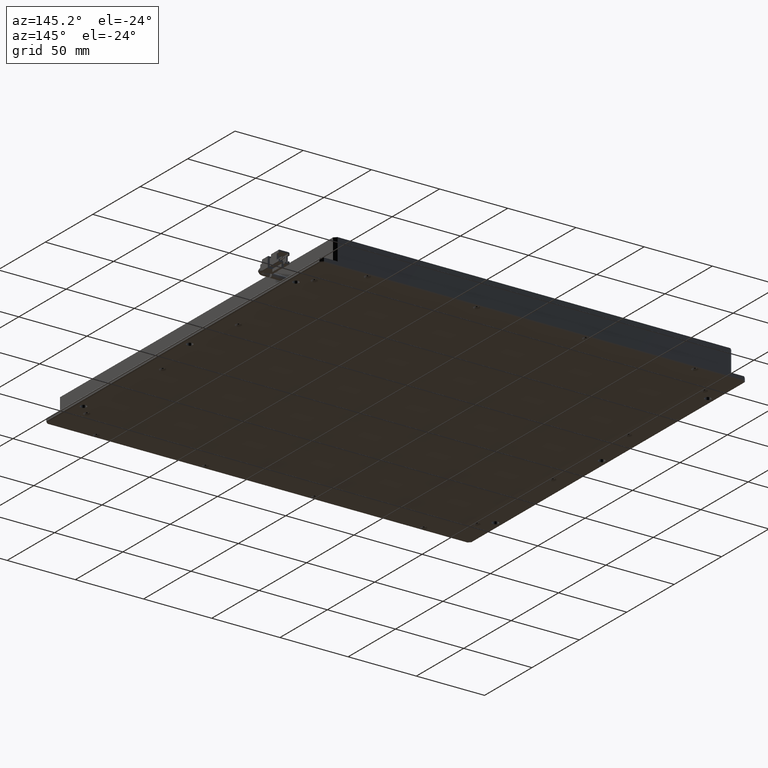
[diagram: clean part render]
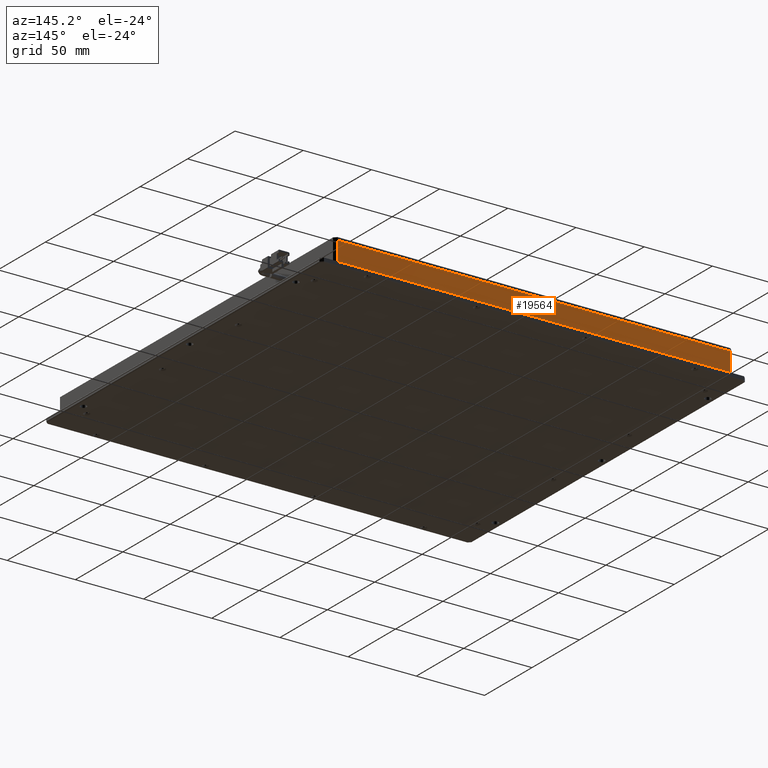
[diagram: same view with one face highlighted and labeled with its STEP entity id]
A machine part, auxiliary view. The second image highlights one B-rep face of the part: STEP entity #19564.
In plain terms, the highlighted planar face has unit normal (0, -1, 0).
Its self-contained STEP definition (entity closure, byte-faithful):
#1144 = DIRECTION ( 'NONE',  ( -1.000000000000000000, -0.0000000000000000000, 0.0000000000000000000 ) ) ;
#1535 = ORIENTED_EDGE ( 'NONE', *, *, #1573, .T. ) ;
#1573 = EDGE_CURVE ( 'NONE', #19891, #16066, #23715, .T. ) ;
#1976 = DIRECTION ( 'NONE',  ( 0.0000000000000000000, -1.000000000000000000, 0.0000000000000000000 ) ) ;
#2115 = CARTESIAN_POINT ( 'NONE',  ( -111.0806771263419000, 159.2698045692266900, 6.999999999971805700 ) ) ;
#3209 = EDGE_LOOP ( 'NONE', ( #19469, #13529, #1535, #20201 ) ) ;
#3385 = CARTESIAN_POINT ( 'NONE',  ( -113.0806771263418400, 159.2698045692266900, -7.000000000028194300 ) ) ;
#3428 = LINE ( 'NONE', #3385, #20123 ) ;
#4227 = VERTEX_POINT ( 'NONE', #18205 ) ;
#4544 = CARTESIAN_POINT ( 'NONE',  ( -111.0806771263418800, 159.2698045692266900, 6.999999999971805700 ) ) ;
#6206 = LINE ( 'NONE', #23191, #19439 ) ;
#7889 = VECTOR ( 'NONE', #17192, 1000.000000000000000 ) ;
#8707 = DIRECTION ( 'NONE',  ( 1.000000000000000000, 0.0000000000000000000, 0.0000000000000000000 ) ) ;
#8892 = CARTESIAN_POINT ( 'NONE',  ( -111.0806771263419000, 159.2698045692266900, -7.000000000028197000 ) ) ;
#9083 = DIRECTION ( 'NONE',  ( 0.0000000000000000000, -0.0000000000000000000, -1.000000000000000000 ) ) ;
#10825 = FACE_OUTER_BOUND ( 'NONE', #3209, .T. ) ;
#12144 = EDGE_CURVE ( 'NONE', #19891, #4227, #3428, .T. ) ;
#12507 = DIRECTION ( 'NONE',  ( -0.0000000000000000000, 0.0000000000000000000, 1.000000000000000000 ) ) ;
#13362 = VECTOR ( 'NONE', #12507, 1000.000000000000000 ) ;
#13529 = ORIENTED_EDGE ( 'NONE', *, *, #12144, .F. ) ;
#14757 = CARTESIAN_POINT ( 'NONE',  ( -113.0806771263418400, 159.2698045692266900, 6.999999999971805700 ) ) ;
#16066 = VERTEX_POINT ( 'NONE', #4544 ) ;
#17086 = CARTESIAN_POINT ( 'NONE',  ( 176.9193228736581300, 159.2698045692266400, 6.999999999971805700 ) ) ;
#17192 = DIRECTION ( 'NONE',  ( -0.0000000000000000000, 0.0000000000000000000, 1.000000000000000000 ) ) ;
#17370 = EDGE_CURVE ( 'NONE', #4227, #22362, #18228, .T. ) ;
#18205 = CARTESIAN_POINT ( 'NONE',  ( 176.9193228736581300, 159.2698045692266400, -7.000000000028196100 ) ) ;
#18228 = LINE ( 'NONE', #23511, #13362 ) ;
#19439 = VECTOR ( 'NONE', #1144, 1000.000000000000000 ) ;
#19469 = ORIENTED_EDGE ( 'NONE', *, *, #17370, .F. ) ;
#19479 = PLANE ( 'NONE',  #23254 ) ;
#19564 = ADVANCED_FACE ( 'NONE', ( #10825 ), #19479, .F. ) ;
#19800 = EDGE_CURVE ( 'NONE', #22362, #16066, #6206, .T. ) ;
#19891 = VERTEX_POINT ( 'NONE', #8892 ) ;
#20123 = VECTOR ( 'NONE', #8707, 1000.000000000000000 ) ;
#20201 = ORIENTED_EDGE ( 'NONE', *, *, #19800, .F. ) ;
#22362 = VERTEX_POINT ( 'NONE', #17086 ) ;
#23191 = CARTESIAN_POINT ( 'NONE',  ( -113.0806771263418400, 159.2698045692266900, 6.999999999971805700 ) ) ;
#23254 = AXIS2_PLACEMENT_3D ( 'NONE', #14757, #1976, #9083 ) ;
#23511 = CARTESIAN_POINT ( 'NONE',  ( 176.9193228736580700, 159.2698045692266900, 6.999999999971805700 ) ) ;
#23715 = LINE ( 'NONE', #2115, #7889 ) ;